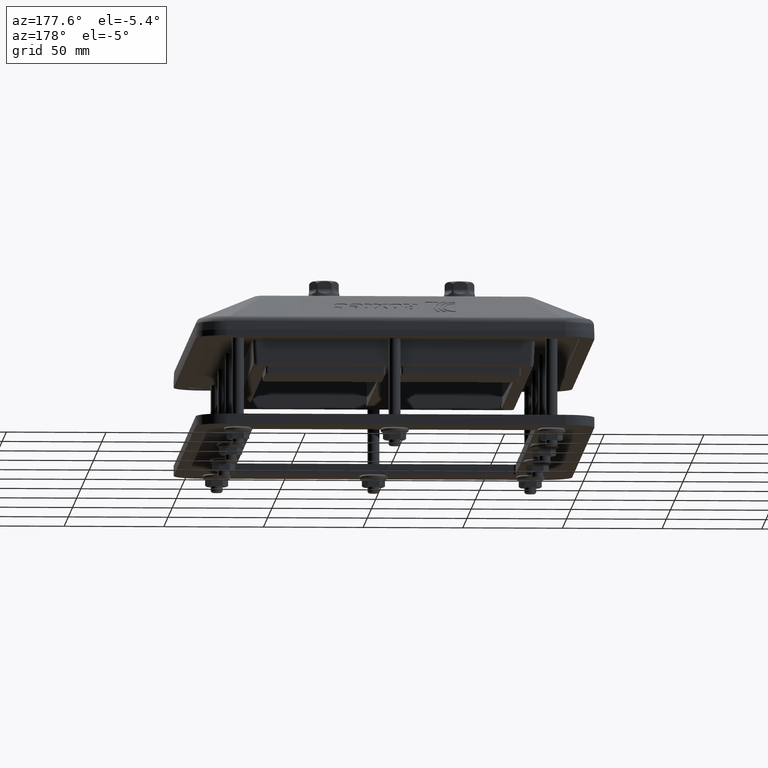
[diagram: clean part render]
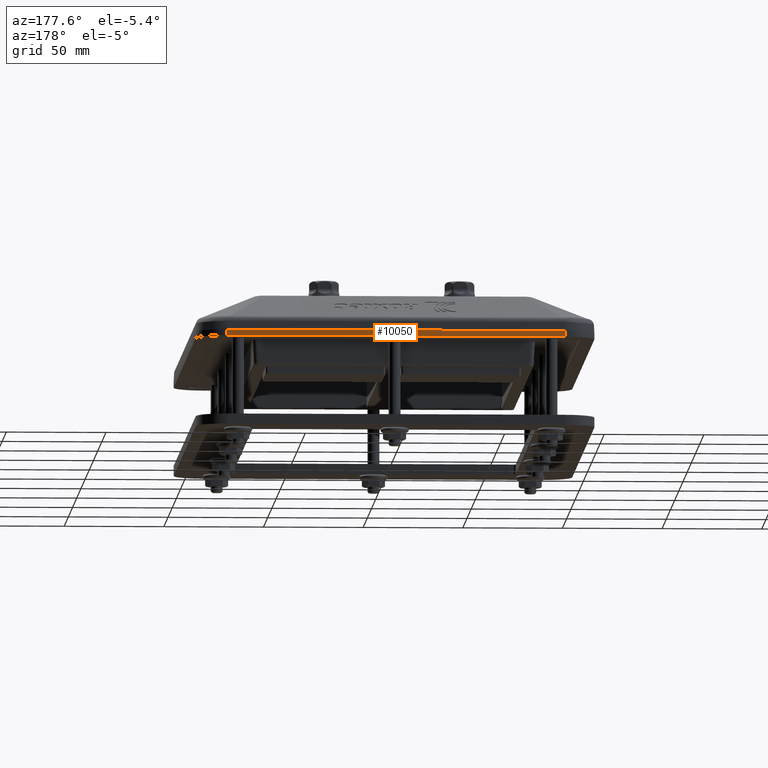
[diagram: same view with one face highlighted and labeled with its STEP entity id]
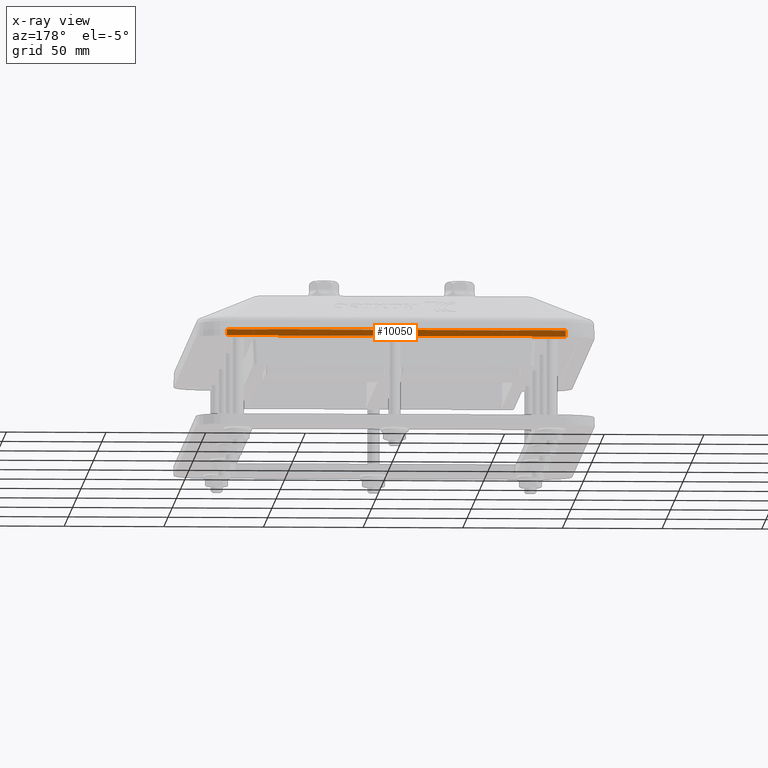
[diagram: x-ray of the same camera — body ghosted, the highlighted face saturated]
A machine part, auxiliary view. The second image highlights one B-rep face of the part: STEP entity #10050.
The next image is the same camera in x-ray: the body ghosted, the highlighted face saturated — about 0% of this face is hidden behind the body in this view.
In plain terms, the highlighted planar face has unit normal (0, 1, 0).
Its self-contained STEP definition (entity closure, byte-faithful):
#795=PLANE('',#10949);
#1231=FACE_OUTER_BOUND('',#1846,.T.);
#1846=EDGE_LOOP('',(#7582,#7583,#7584,#7585));
#2355=LINE('',#16308,#2995);
#2368=LINE('',#16348,#3008);
#2369=LINE('',#16351,#3009);
#2370=LINE('',#16352,#3010);
#2995=VECTOR('',#12635,10.);
#3008=VECTOR('',#12674,10.);
#3009=VECTOR('',#12679,10.);
#3010=VECTOR('',#12680,10.);
#4323=VERTEX_POINT('',#16306);
#4324=VERTEX_POINT('',#16307);
#4337=VERTEX_POINT('',#16345);
#4338=VERTEX_POINT('',#16347);
#5494=EDGE_CURVE('',#4323,#4324,#2355,.T.);
#5514=EDGE_CURVE('',#4338,#4337,#2368,.T.);
#5516=EDGE_CURVE('',#4324,#4337,#2369,.T.);
#5517=EDGE_CURVE('',#4338,#4323,#2370,.T.);
#7582=ORIENTED_EDGE('',*,*,#5514,.T.);
#7583=ORIENTED_EDGE('',*,*,#5516,.F.);
#7584=ORIENTED_EDGE('',*,*,#5494,.F.);
#7585=ORIENTED_EDGE('',*,*,#5517,.F.);
#10050=ADVANCED_FACE('',(#1231),#795,.T.);
#10949=AXIS2_PLACEMENT_3D('',#16350,#12677,#12678);
#12635=DIRECTION('',(0.,0.,-1.));
#12674=DIRECTION('',(0.,0.,-1.));
#12677=DIRECTION('center_axis',(0.,1.,0.));
#12678=DIRECTION('ref_axis',(1.,0.,0.));
#12679=DIRECTION('',(1.,0.,0.));
#12680=DIRECTION('',(-1.,2.089831575765E-16,0.));
#16306=CARTESIAN_POINT('',(-85.0000000000001,147.5,-16.8));
#16307=CARTESIAN_POINT('',(-85.0000000000001,147.5,-19.8));
#16308=CARTESIAN_POINT('',(-85.0000000000001,147.5,-16.8));
#16345=CARTESIAN_POINT('',(85.0000000000001,147.5,-19.8));
#16347=CARTESIAN_POINT('',(85.0000000000001,147.5,-16.8));
#16348=CARTESIAN_POINT('',(85.0000000000001,147.5,-16.8));
#16350=CARTESIAN_POINT('Origin',(-85.0000000000001,147.5,-16.8));
#16351=CARTESIAN_POINT('',(-85.0000000000001,147.5,-19.8));
#16352=CARTESIAN_POINT('',(42.5,147.5,-16.8));